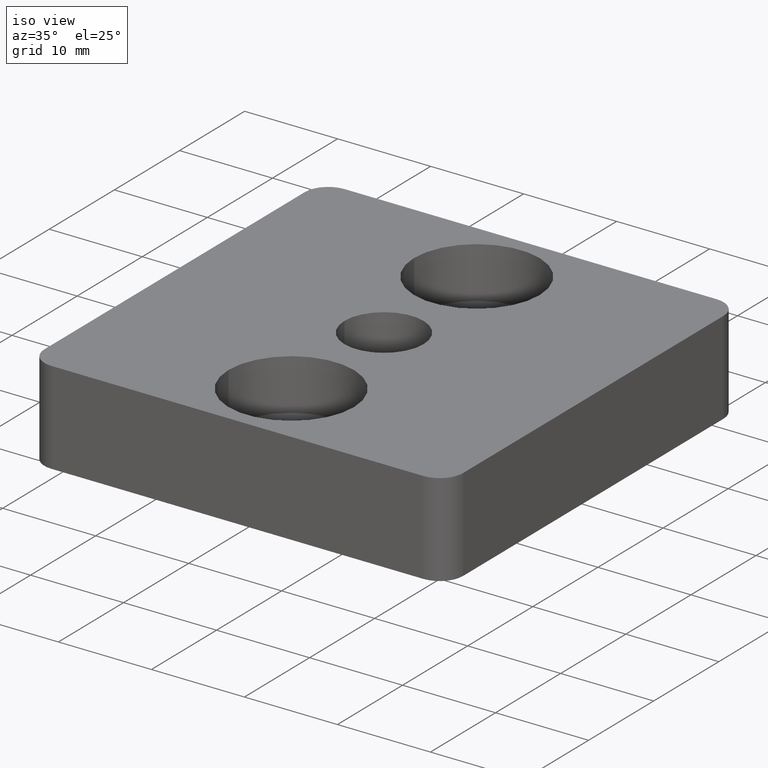
[diagram: clean part render]
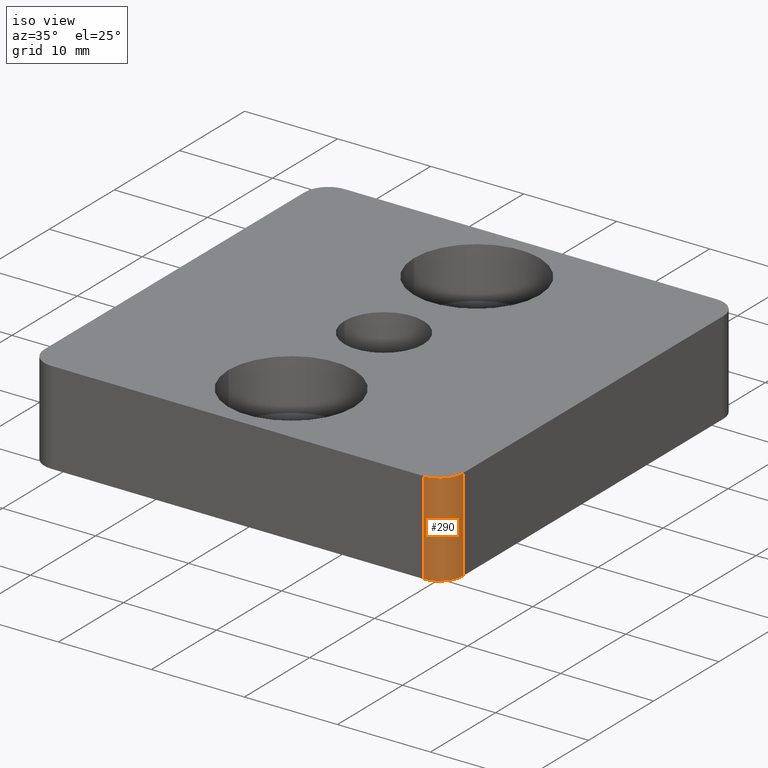
[diagram: same view with one face highlighted and labeled with its STEP entity id]
A machine part, iso view. The second image highlights one B-rep face of the part: STEP entity #290.
In plain terms, the highlighted cylindrical surface (edge-blend (fillet) strip) has radius 2.5 mm, axis along (0, 0, 1).
Its self-contained STEP definition (entity closure, byte-faithful):
#39=FACE_OUTER_BOUND('',#58,.T.);
#58=EDGE_LOOP('',(#208,#209,#210,#211));
#92=CIRCLE('',#312,2.49999999999);
#93=CIRCLE('',#313,2.49999999999);
#112=LINE('',#450,#128);
#113=LINE('',#454,#129);
#128=VECTOR('',#354,10.);
#129=VECTOR('',#357,10.);
#144=VERTEX_POINT('',#448);
#145=VERTEX_POINT('',#449);
#146=VERTEX_POINT('',#451);
#147=VERTEX_POINT('',#453);
#172=EDGE_CURVE('',#144,#145,#112,.T.);
#173=EDGE_CURVE('',#145,#146,#92,.T.);
#174=EDGE_CURVE('',#147,#146,#113,.T.);
#175=EDGE_CURVE('',#144,#147,#93,.T.);
#208=ORIENTED_EDGE('',*,*,#172,.T.);
#209=ORIENTED_EDGE('',*,*,#173,.T.);
#210=ORIENTED_EDGE('',*,*,#174,.F.);
#211=ORIENTED_EDGE('',*,*,#175,.F.);
#280=CYLINDRICAL_SURFACE('',#311,2.49999999999);
#290=ADVANCED_FACE('',(#39),#280,.T.);
#311=AXIS2_PLACEMENT_3D('',#447,#352,#353);
#312=AXIS2_PLACEMENT_3D('',#452,#355,#356);
#313=AXIS2_PLACEMENT_3D('',#455,#358,#359);
#352=DIRECTION('center_axis',(0.,0.,1.));
#353=DIRECTION('ref_axis',(0.,-1.,0.));
#354=DIRECTION('',(0.,0.,-1.));
#355=DIRECTION('center_axis',(0.,0.,1.));
#356=DIRECTION('ref_axis',(1.,0.,0.));
#357=DIRECTION('',(0.,0.,-1.));
#358=DIRECTION('center_axis',(0.,0.,1.));
#359=DIRECTION('ref_axis',(1.,0.,0.));
#447=CARTESIAN_POINT('Origin',(19.99999999992,-19.99999999992,0.));
#448=CARTESIAN_POINT('',(19.99999999992,-22.49999999991,0.));
#449=CARTESIAN_POINT('',(19.99999999992,-22.49999999991,-10.));
#450=CARTESIAN_POINT('',(19.99999999992,-22.49999999991,0.));
#451=CARTESIAN_POINT('',(22.49999999991,-19.99999999992,-10.));
#452=CARTESIAN_POINT('Origin',(19.99999999992,-19.99999999992,-10.));
#453=CARTESIAN_POINT('',(22.49999999991,-19.99999999992,0.));
#454=CARTESIAN_POINT('',(22.49999999991,-19.99999999992,0.));
#455=CARTESIAN_POINT('Origin',(19.99999999992,-19.99999999992,0.));